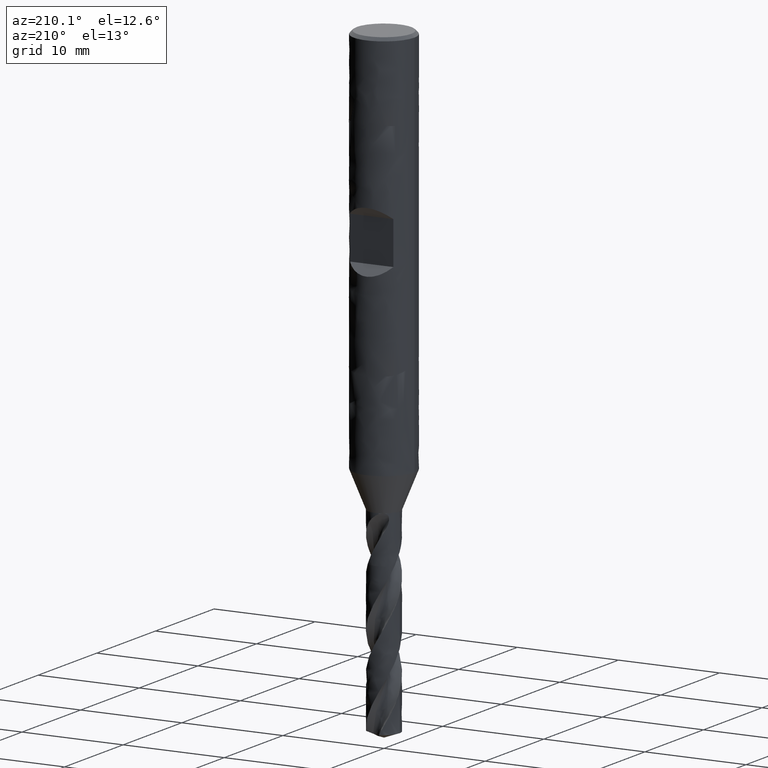
[diagram: clean part render]
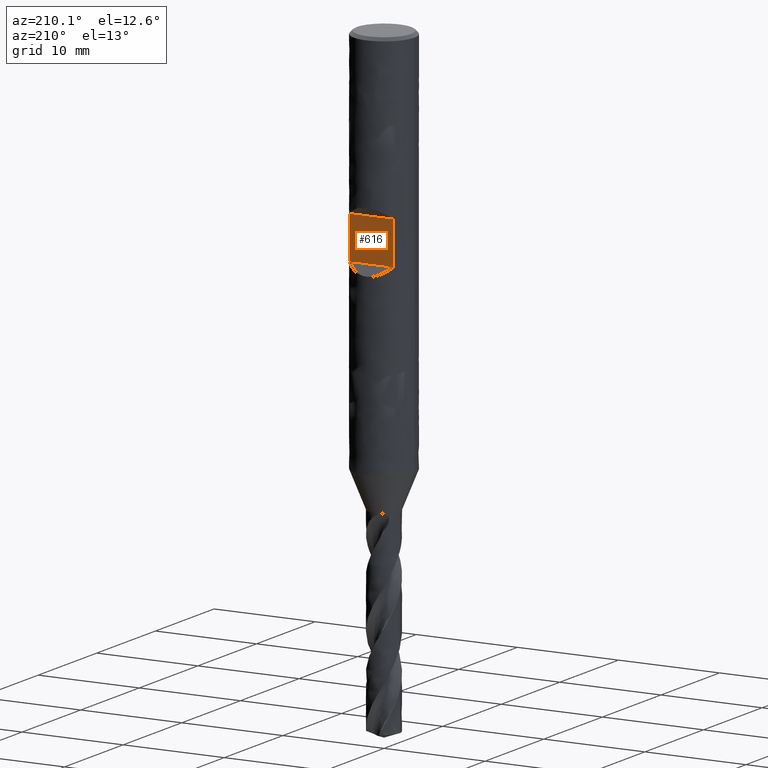
[diagram: same view with one face highlighted and labeled with its STEP entity id]
A machine part, auxiliary view. The second image highlights one B-rep face of the part: STEP entity #616.
In plain terms, the highlighted planar face has unit normal (0, 1, 0).
Its self-contained STEP definition (entity closure, byte-faithful):
#430 = VERTEX_POINT('', #431);
#431 = CARTESIAN_POINT('', (-2.14242852856285, 2.1, -15.9));
#432 = VERTEX_POINT('', #433);
#433 = CARTESIAN_POINT('', (2.14242852856285, 2.1, -15.9));
#509 = EDGE_CURVE('', #430, #510, #512, .T.);
#510 = VERTEX_POINT('', #511);
#511 = CARTESIAN_POINT('', (-2.14242852856285, 2.1, -20.1));
#512 = LINE('', #513, #514);
#513 = CARTESIAN_POINT('', (-2.14242852856285, 2.1, -15.9));
#514 = VECTOR('', #515, 4.2);
#515 = DIRECTION('', (0., 0., -4.2));
#518 = VERTEX_POINT('', #519);
#519 = CARTESIAN_POINT('', (2.14242852856286, 2.1, -20.1));
#592 = EDGE_CURVE('', #432, #518, #593, .T.);
#593 = LINE('', #594, #595);
#594 = CARTESIAN_POINT('', (2.14242852856285, 2.1, -15.9));
#595 = VECTOR('', #596, 4.2);
#596 = DIRECTION('', (8.88178419700125E-16, 4.44089209850063E-16, -4.2));
#616 = ADVANCED_FACE('', (#617), #633, .T.);
#617 = FACE_OUTER_BOUND('', #618, .T.);
#618 = EDGE_LOOP('', (#619, #620, #626, #627));
#619 = ORIENTED_EDGE('', *, *, #592, .T.);
#620 = ORIENTED_EDGE('', *, *, #621, .T.);
#621 = EDGE_CURVE('', #518, #510, #622, .T.);
#622 = LINE('', #623, #624);
#623 = CARTESIAN_POINT('', (2.14242852856286, 2.1, -20.1));
#624 = VECTOR('', #625, 4.28485705712571);
#625 = DIRECTION('', (-4.28485705712571, 4.44089209850063E-16, 0.));
#626 = ORIENTED_EDGE('', *, *, #509, .F.);
#627 = ORIENTED_EDGE('', *, *, #628, .F.);
#628 = EDGE_CURVE('', #432, #430, #629, .T.);
#629 = LINE('', #630, #631);
#630 = CARTESIAN_POINT('', (2.14242852856285, 2.1, -15.9));
#631 = VECTOR('', #632, 4.28485705712571);
#632 = DIRECTION('', (-4.28485705712571, 4.44089209850063E-16, 0.));
#633 = PLANE('', #634);
#634 = AXIS2_PLACEMENT_3D('', #635, #636, #637);
#635 = CARTESIAN_POINT('', (3., 2.1, -20.1));
#636 = DIRECTION('', (0., 1., 1.05735526154777E-16));
#637 = DIRECTION('', (-1., 0., 0.));